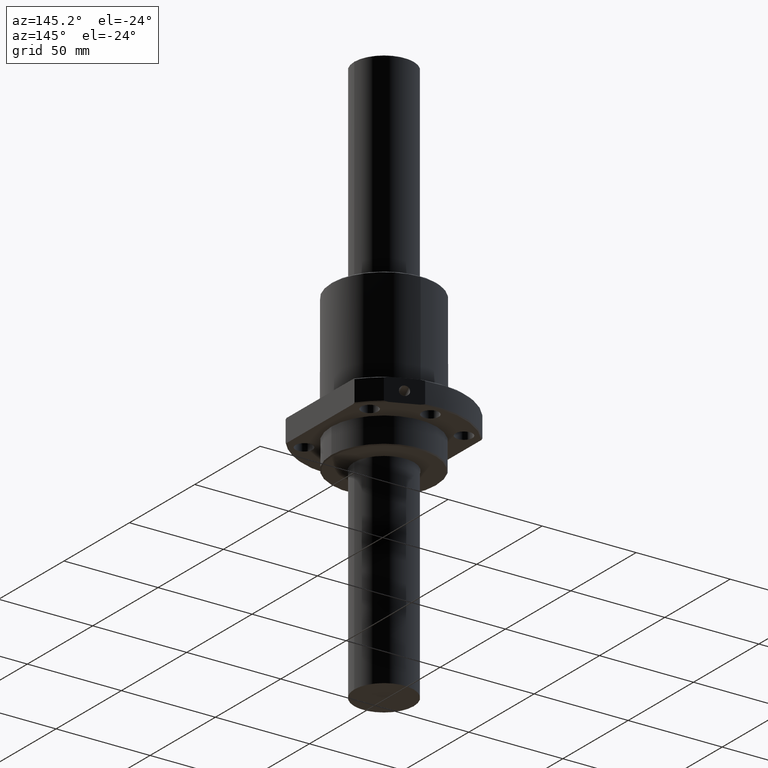
[diagram: clean part render]
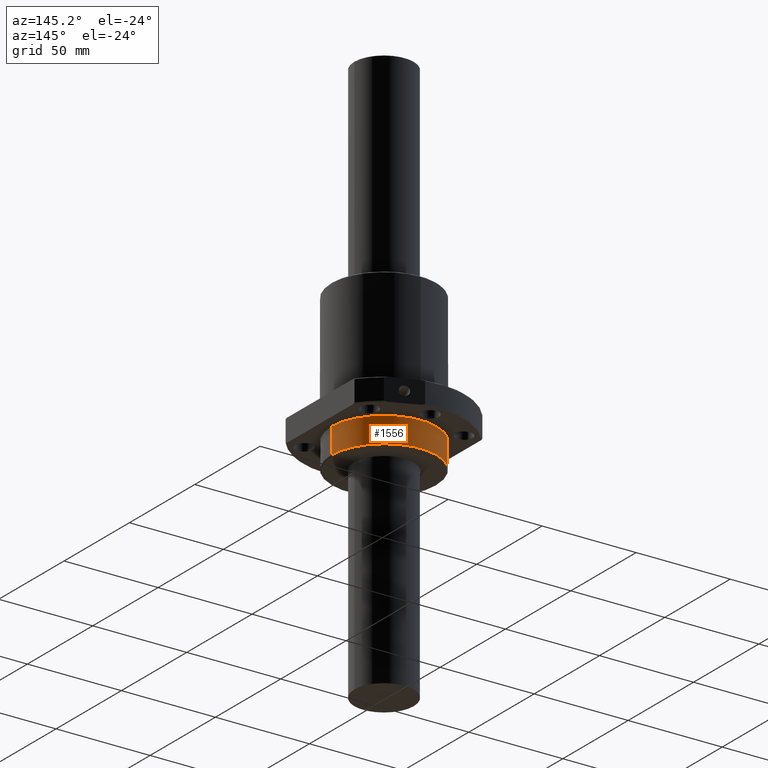
[diagram: same view with one face highlighted and labeled with its STEP entity id]
A machine part, auxiliary view. The second image highlights one B-rep face of the part: STEP entity #1556.
In plain terms, the highlighted cylindrical surface (partial cylindrical patch) has radius 28 mm, axis along (0, 0, -1).
Its self-contained STEP definition (entity closure, byte-faithful):
#18 = LINE ( 'NONE', #327, #525 ) ;
#30 = EDGE_CURVE ( 'NONE', #483, #380, #1360, .T. ) ;
#90 = AXIS2_PLACEMENT_3D ( 'NONE', #240, #238, #232 ) ;
#112 = DIRECTION ( 'NONE',  ( 0.0000000000000000000, 0.0000000000000000000, 1.000000000000000000 ) ) ;
#135 = AXIS2_PLACEMENT_3D ( 'NONE', #970, #959, #957 ) ;
#166 = VERTEX_POINT ( 'NONE', #1122 ) ;
#171 = EDGE_CURVE ( 'NONE', #880, #483, #18, .T. ) ;
#232 = DIRECTION ( 'NONE',  ( 1.000000000000000000, 0.0000000000000000000, 0.0000000000000000000 ) ) ;
#238 = DIRECTION ( 'NONE',  ( 0.0000000000000000000, 0.0000000000000000000, 1.000000000000000000 ) ) ;
#240 = CARTESIAN_POINT ( 'NONE',  ( 0.0000000000000000000, 0.0000000000000000000, -13.99999400000000100 ) ) ;
#314 = AXIS2_PLACEMENT_3D ( 'NONE', #604, #601, #592 ) ;
#327 = CARTESIAN_POINT ( 'NONE',  ( 27.99999610000000100, 0.0000000000000000000, -13.99999400000000100 ) ) ;
#380 = VERTEX_POINT ( 'NONE', #1049 ) ;
#483 = VERTEX_POINT ( 'NONE', #1148 ) ;
#525 = VECTOR ( 'NONE', #112, 1000.000000000000000 ) ;
#581 = CIRCLE ( 'NONE', #135, 27.99999610000000100 ) ;
#592 = DIRECTION ( 'NONE',  ( 1.000000000000000000, 0.0000000000000000000, 0.0000000000000000000 ) ) ;
#601 = DIRECTION ( 'NONE',  ( 0.0000000000000000000, 0.0000000000000000000, 1.000000000000000000 ) ) ;
#604 = CARTESIAN_POINT ( 'NONE',  ( 0.0000000000000000000, 0.0000000000000000000, -0.5000000000000000000 ) ) ;
#688 = ORIENTED_EDGE ( 'NONE', *, *, #1193, .T. ) ;
#726 = VECTOR ( 'NONE', #1841, 1000.000000000000000 ) ;
#801 = ORIENTED_EDGE ( 'NONE', *, *, #30, .F. ) ;
#848 = ORIENTED_EDGE ( 'NONE', *, *, #1857, .T. ) ;
#880 = VERTEX_POINT ( 'NONE', #1437 ) ;
#957 = DIRECTION ( 'NONE',  ( 1.000000000000000000, 0.0000000000000000000, 0.0000000000000000000 ) ) ;
#958 = ORIENTED_EDGE ( 'NONE', *, *, #171, .F. ) ;
#959 = DIRECTION ( 'NONE',  ( 0.0000000000000000000, 0.0000000000000000000, 1.000000000000000000 ) ) ;
#970 = CARTESIAN_POINT ( 'NONE',  ( 0.0000000000000000000, 0.0000000000000000000, -13.99999400000000100 ) ) ;
#1049 = CARTESIAN_POINT ( 'NONE',  ( -27.99999610000000100, 0.0000000000000000000, -0.5000000000000000000 ) ) ;
#1066 = FACE_OUTER_BOUND ( 'NONE', #1469, .T. ) ;
#1122 = CARTESIAN_POINT ( 'NONE',  ( -27.99999610000000100, 3.429010560000337200E-015, -13.99999400000000100 ) ) ;
#1148 = CARTESIAN_POINT ( 'NONE',  ( 27.99999610000000100, 3.429010560000337200E-015, -0.5000000000000000000 ) ) ;
#1193 = EDGE_CURVE ( 'NONE', #880, #166, #581, .T. ) ;
#1360 = CIRCLE ( 'NONE', #314, 27.99999610000000100 ) ;
#1437 = CARTESIAN_POINT ( 'NONE',  ( 27.99999610000000100, 0.0000000000000000000, -13.99999400000000100 ) ) ;
#1469 = EDGE_LOOP ( 'NONE', ( #688, #848, #801, #958 ) ) ;
#1556 = ADVANCED_FACE ( 'NONE', ( #1066 ), #1788, .T. ) ;
#1788 = CYLINDRICAL_SURFACE ( 'NONE', #90, 27.99999610000000100 ) ;
#1841 = DIRECTION ( 'NONE',  ( 0.0000000000000000000, 0.0000000000000000000, 1.000000000000000000 ) ) ;
#1843 = CARTESIAN_POINT ( 'NONE',  ( -27.99999610000000100, 3.429010560000337200E-015, -13.99999400000000100 ) ) ;
#1849 = LINE ( 'NONE', #1843, #726 ) ;
#1857 = EDGE_CURVE ( 'NONE', #166, #380, #1849, .T. ) ;